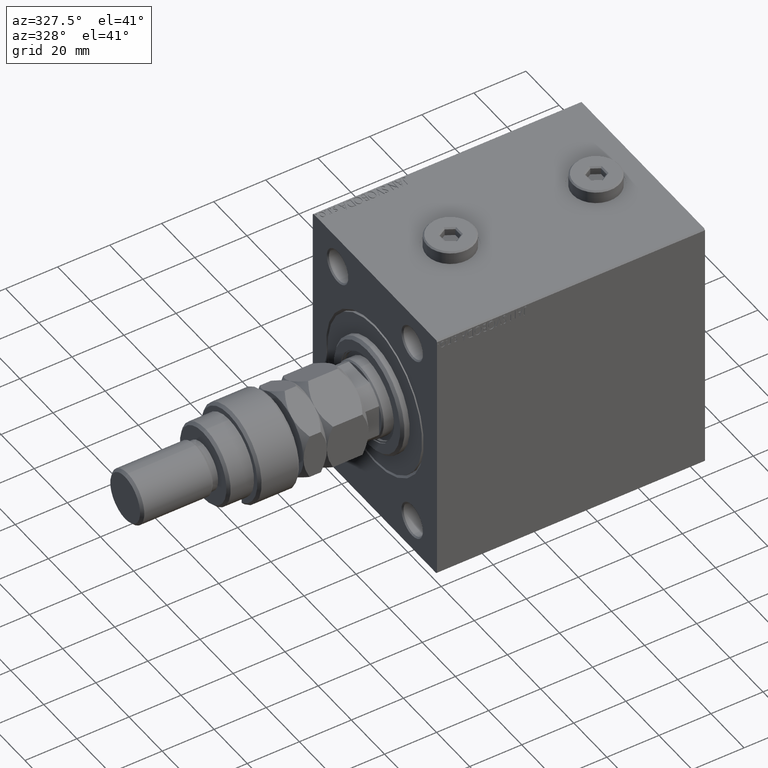
[diagram: clean part render]
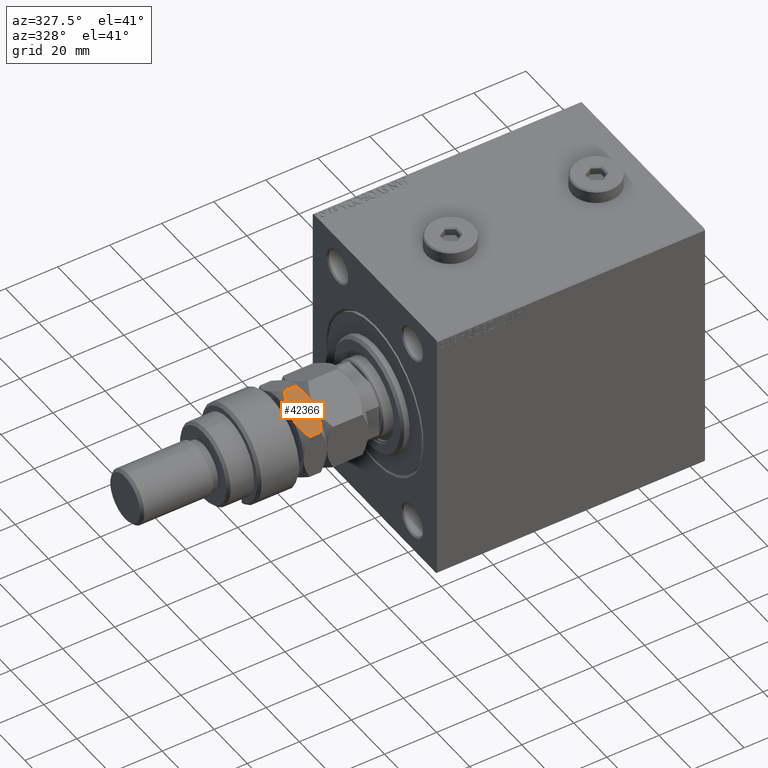
[diagram: same view with one face highlighted and labeled with its STEP entity id]
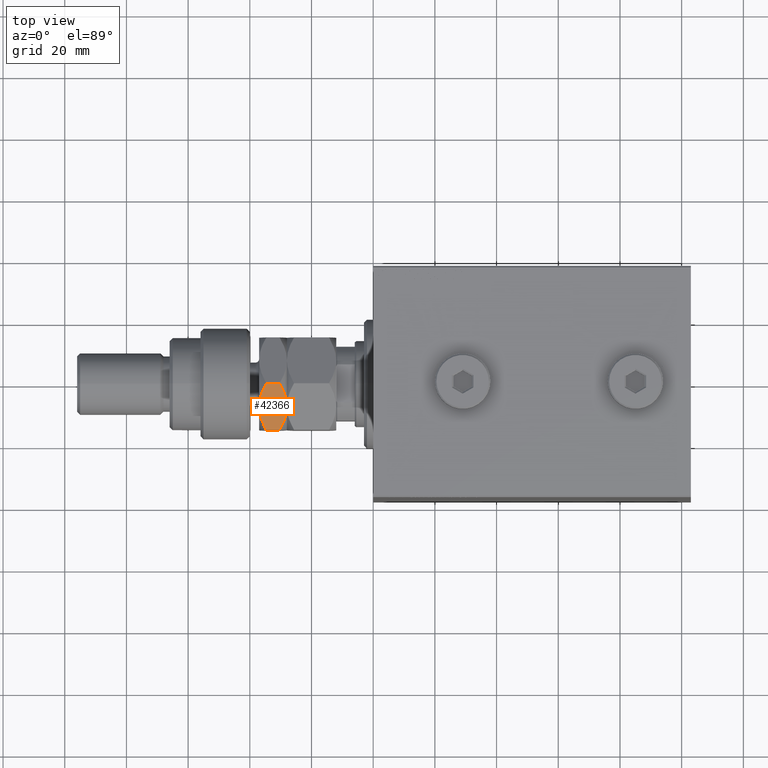
[diagram: same view with one face highlighted and labeled with its STEP entity id]
A machine part, auxiliary view. The second image highlights one B-rep face of the part: STEP entity #42366.
A second angle (top view) of the same face is appended — the face is thin or edge-on in the first view.
In plain terms, the highlighted planar face has unit normal (-0, 0.5, -0.866).
Its self-contained STEP definition (entity closure, byte-faithful):
#151 = CARTESIAN_POINT ( 'NONE',  ( 14.99999999999999822, 0.3804688789667641791, 25.00000000000000000 ) ) ;
#667 = LINE ( 'NONE', #45594, #47670 ) ;
#1305 = ORIENTED_EDGE ( 'NONE', *, *, #19818, .F. ) ;
#1990 = CARTESIAN_POINT ( 'NONE',  ( 14.99999999999999822, -0.7628644205843061465, 16.01467181866700784 ) ) ;
#2672 = ORIENTED_EDGE ( 'NONE', *, *, #28119, .F. ) ;
#3412 = CARTESIAN_POINT ( 'NONE',  ( 14.99999999999999645, 8.660254037844387298, 18.32050807568876394 ) ) ;
#3872 = CARTESIAN_POINT ( 'NONE',  ( 14.99999999999999822, -5.891098461327062275, 23.88813662624436773 ) ) ;
#4223 = EDGE_CURVE ( 'NONE', #31581, #35551, #19300, .T. ) ;
#4360 = EDGE_CURVE ( 'NONE', #17251, #25155, #667, .T. ) ;
#5692 = CARTESIAN_POINT ( 'NONE',  ( 15.00000000000000000, -7.988323794068004524, 17.98454295380057744 ) ) ;
#6600 = FACE_OUTER_BOUND ( 'NONE', #7388, .T. ) ;
#6620 = CARTESIAN_POINT ( 'NONE',  ( 14.99999999999999645, 1.524122972781247309, 15.99999999999999645 ) ) ;
#7086 = CARTESIAN_POINT ( 'NONE',  ( 14.99999999999999645, 1.502314598737159426E-15, 25.00000000000000000 ) ) ;
#7292 = CARTESIAN_POINT ( 'NONE',  ( 14.99999999999999467, 1.517610682399677557, 24.92812055908709112 ) ) ;
#7388 = EDGE_LOOP ( 'NONE', ( #1305, #47919, #12840, #9900, #11249, #2672 ) ) ;
#7808 = CARTESIAN_POINT ( 'NONE',  ( 15.00000000000000178, -4.814853579356896063, 24.25000369044311199 ) ) ;
#8025 = CARTESIAN_POINT ( 'NONE',  ( 14.99999999999999645, 7.988323794068006301, 23.01545704619942256 ) ) ;
#9811 = PLANE ( 'NONE',  #36859 ) ;
#9831 = CARTESIAN_POINT ( 'NONE',  ( 14.99999999999999645, 0.000000000000000000, 16.00000000000000000 ) ) ;
#9900 = ORIENTED_EDGE ( 'NONE', *, *, #4223, .F. ) ;
#9960 = CARTESIAN_POINT ( 'NONE',  ( 14.99999999999999822, -8.660254037844383745, 22.67949192431123961 ) ) ;
#10077 = CARTESIAN_POINT ( 'NONE',  ( 14.99999999999999112, 6.248143622294145771, 17.24609782017707715 ) ) ;
#11249 = ORIENTED_EDGE ( 'NONE', *, *, #12477, .T. ) ;
#11964 = DIRECTION ( 'NONE',  ( -0.000000000000000000, -0.000000000000000000, -1.000000000000000000 ) ) ;
#12477 = EDGE_CURVE ( 'NONE', #31581, #31386, #13500, .T. ) ;
#12784 = VERTEX_POINT ( 'NONE', #23029 ) ;
#12840 = ORIENTED_EDGE ( 'NONE', *, *, #23317, .F. ) ;
#13376 = CARTESIAN_POINT ( 'NONE',  ( 14.99999999999999822, 8.660254037844385522, 22.67949192431123961 ) ) ;
#13480 = DIRECTION ( 'NONE',  ( -1.000000000000000000, -1.001543065824773222E-16, 0.000000000000000000 ) ) ;
#13500 = LINE ( 'NONE', #39780, #20365 ) ;
#13758 = CARTESIAN_POINT ( 'NONE',  ( 15.00000000000000178, -5.892768039091683008, 17.10307638990227730 ) ) ;
#14196 = DIRECTION ( 'NONE',  ( 1.001543065824773222E-16, -1.000000000000000000, 0.000000000000000000 ) ) ;
#14220 = CARTESIAN_POINT ( 'NONE',  ( 14.99999999999999822, 4.814853579356897839, 16.74999630955690577 ) ) ;
#14433 = CARTESIAN_POINT ( 'NONE',  ( 14.99999999999999112, -6.248143622294143107, 23.75390217982290864 ) ) ;
#14496 = B_SPLINE_CURVE_WITH_KNOTS ( 'NONE', 3,
 ( #36360, #17455, #1990, #32436, #24338, #32189, #47394, #47163, #13758, #39322, #5692, #43727 ),
 .UNSPECIFIED., .F., .F.,
 ( 4, 2, 2, 2, 2, 4 ),
 ( 0.03191542946226437472, 0.03304303448889991252, 0.03417063951553545031, 0.03642584956880652591, 0.03868105962207760151, 0.04093626967534867711 ),
 .UNSPECIFIED. ) ;
#17251 = VERTEX_POINT ( 'NONE', #13376 ) ;
#17455 = CARTESIAN_POINT ( 'NONE',  ( 15.00000000000000178, -0.3804688789667639015, 16.00000000000000000 ) ) ;
#18313 = CARTESIAN_POINT ( 'NONE',  ( 14.99999999999999822, 5.180699559534207133, 24.14562739175687867 ) ) ;
#18376 = CARTESIAN_POINT ( 'NONE',  ( 14.99999999999999467, 3.004852722955711819, 16.23490203621984307 ) ) ;
#19300 = B_SPLINE_CURVE_WITH_KNOTS ( 'NONE', 3,
 ( #26445, #29886, #22521, #14433, #3872, #33817, #7808, #44380, #26690, #7086 ),
 .UNSPECIFIED., .F., .F.,
 ( 4, 2, 2, 2, 4 ),
 ( 0.02288126756189531180, 0.02513980803698757580, 0.02626907827453370953, 0.02739834851207984326, 0.03191542946226437472 ),
 .UNSPECIFIED. ) ;
#19818 = EDGE_CURVE ( 'NONE', #25155, #12784, #37642, .T. ) ;
#20365 = VECTOR ( 'NONE', #42497, 1000.000000000000000 ) ;
#22474 = CARTESIAN_POINT ( 'NONE',  ( 14.99999999999999822, 7.301375305910570823, 23.32983397160520411 ) ) ;
#22521 = CARTESIAN_POINT ( 'NONE',  ( 14.99999999999999645, -7.303107243978799623, 23.32903847857429014 ) ) ;
#23029 = CARTESIAN_POINT ( 'NONE',  ( 14.99999999999999645, 0.000000000000000000, 16.00000000000000000 ) ) ;
#23317 = EDGE_CURVE ( 'NONE', #35551, #17251, #29782, .T. ) ;
#24338 = CARTESIAN_POINT ( 'NONE',  ( 15.00000000000000000, -1.891887532498635061, 16.11437633297792615 ) ) ;
#25155 = VERTEX_POINT ( 'NONE', #37082 ) ;
#26445 = CARTESIAN_POINT ( 'NONE',  ( 14.99999999999999822, -8.660254037844383745, 22.67949192431123961 ) ) ;
#26647 = CARTESIAN_POINT ( 'NONE',  ( 14.99999999999999645, 5.892768039091680343, 23.89692361009772625 ) ) ;
#26690 = CARTESIAN_POINT ( 'NONE',  ( 14.99999999999999645, -1.524122972781246865, 25.00000000000000000 ) ) ;
#28119 = EDGE_CURVE ( 'NONE', #12784, #31386, #14496, .T. ) ;
#29358 = CARTESIAN_POINT ( 'NONE',  ( 14.99999999999999822, 3.006083412830564683, 24.71938903440270607 ) ) ;
#29782 = B_SPLINE_CURVE_WITH_KNOTS ( 'NONE', 3,
 ( #30320, #151, #45306, #7292, #45065, #29358, #41644, #18313, #26647, #22474, #8025, #36987 ),
 .UNSPECIFIED., .F., .F.,
 ( 4, 2, 2, 2, 2, 4 ),
 ( 0.03191542946226437472, 0.03304303448889991252, 0.03417063951553545031, 0.03642584956880652591, 0.03868105962207760845, 0.04093626967534868405 ),
 .UNSPECIFIED. ) ;
#29886 = CARTESIAN_POINT ( 'NONE',  ( 14.99999999999999822, -7.988341278889598662, 23.01544830378863438 ) ) ;
#30320 = CARTESIAN_POINT ( 'NONE',  ( 14.99999999999999645, 1.502314598737159426E-15, 25.00000000000000000 ) ) ;
#31386 = VERTEX_POINT ( 'NONE', #35849 ) ;
#31474 = CARTESIAN_POINT ( 'NONE',  ( 14.99999999999999645, 1.502314598737159426E-15, 25.00000000000000000 ) ) ;
#31581 = VERTEX_POINT ( 'NONE', #9960 ) ;
#32189 = CARTESIAN_POINT ( 'NONE',  ( 15.00000000000000178, -3.006083412830564239, 16.28061096559729393 ) ) ;
#32436 = CARTESIAN_POINT ( 'NONE',  ( 14.99999999999999822, -1.517610682399678002, 16.07187944091290888 ) ) ;
#32855 = CARTESIAN_POINT ( 'NONE',  ( 14.99999999999999822, -8.660254037844381969, 25.00000000000000000 ) ) ;
#33817 = CARTESIAN_POINT ( 'NONE',  ( 15.00000000000000000, -5.174827754835039428, 24.13601744246643932 ) ) ;
#35551 = VERTEX_POINT ( 'NONE', #31474 ) ;
#35849 = CARTESIAN_POINT ( 'NONE',  ( 15.00000000000000000, -8.660254037844381969, 18.32050807568876394 ) ) ;
#36332 = CARTESIAN_POINT ( 'NONE',  ( 15.00000000000000000, 5.174827754835041205, 16.86398255753356423 ) ) ;
#36360 = CARTESIAN_POINT ( 'NONE',  ( 14.99999999999999645, 0.000000000000000000, 16.00000000000000000 ) ) ;
#36859 = AXIS2_PLACEMENT_3D ( 'NONE', #32855, #13480, #14196 ) ;
#36987 = CARTESIAN_POINT ( 'NONE',  ( 14.99999999999999822, 8.660254037844385522, 22.67949192431123961 ) ) ;
#37082 = CARTESIAN_POINT ( 'NONE',  ( 14.99999999999999645, 8.660254037844387298, 18.32050807568876394 ) ) ;
#37642 = B_SPLINE_CURVE_WITH_KNOTS ( 'NONE', 3,
 ( #3412, #40028, #40266, #10077, #43468, #36332, #14220, #18376, #6620, #9831 ),
 .UNSPECIFIED., .F., .F.,
 ( 4, 2, 2, 2, 4 ),
 ( 0.02288126756189531180, 0.02513980803698757580, 0.02626907827453370953, 0.02739834851207984326, 0.03191542946226437472 ),
 .UNSPECIFIED. ) ;
#39322 = CARTESIAN_POINT ( 'NONE',  ( 15.00000000000000000, -7.301375305910570823, 17.67016602839480299 ) ) ;
#39780 = CARTESIAN_POINT ( 'NONE',  ( 14.99999999999999822, -8.660254037844381969, 25.00000000000000000 ) ) ;
#40028 = CARTESIAN_POINT ( 'NONE',  ( 14.99999999999999645, 7.988341278889603991, 17.98455169621137983 ) ) ;
#40266 = CARTESIAN_POINT ( 'NONE',  ( 14.99999999999999645, 7.303107243978802288, 17.67096152142570986 ) ) ;
#41644 = CARTESIAN_POINT ( 'NONE',  ( 14.99999999999999645, 3.737365789271271943, 24.55689843594664268 ) ) ;
#42366 = ADVANCED_FACE ( 'NONE', ( #6600 ), #9811, .F. ) ;
#42497 = DIRECTION ( 'NONE',  ( -0.000000000000000000, -0.000000000000000000, -1.000000000000000000 ) ) ;
#43468 = CARTESIAN_POINT ( 'NONE',  ( 14.99999999999999467, 5.891098461327064051, 17.11186337375562871 ) ) ;
#43727 = CARTESIAN_POINT ( 'NONE',  ( 15.00000000000000000, -8.660254037844381969, 18.32050807568876394 ) ) ;
#44380 = CARTESIAN_POINT ( 'NONE',  ( 15.00000000000000000, -3.004852722955709154, 24.76509796378016404 ) ) ;
#45065 = CARTESIAN_POINT ( 'NONE',  ( 14.99999999999999467, 1.891887532498635061, 24.88562366702208095 ) ) ;
#45306 = CARTESIAN_POINT ( 'NONE',  ( 14.99999999999999645, 0.7628644205843058135, 24.98532818133299571 ) ) ;
#45594 = CARTESIAN_POINT ( 'NONE',  ( 14.99999999999999645, 8.660254037844385522, 25.00000000000000000 ) ) ;
#47163 = CARTESIAN_POINT ( 'NONE',  ( 14.99999999999999645, -5.180699559534208021, 16.85437260824312844 ) ) ;
#47394 = CARTESIAN_POINT ( 'NONE',  ( 15.00000000000000000, -3.737365789271273275, 16.44310156405335732 ) ) ;
#47670 = VECTOR ( 'NONE', #11964, 1000.000000000000000 ) ;
#47919 = ORIENTED_EDGE ( 'NONE', *, *, #4360, .F. ) ;